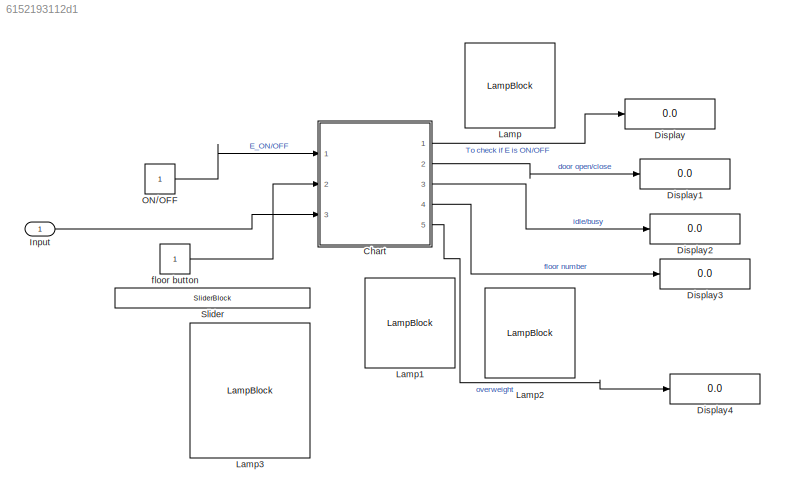
MODEL slx_6152193112d1
KIND model
CONFIG AbsTol = auto
CONFIG EnableMultiTasking = off
CONFIG FixedStep = auto
CONFIG MaxStep = auto
CONFIG MinStep = auto
CONFIG RelTol = 1e-3
CONFIG SampleTimeConstraint = Unconstrained
CONFIG SolverName = VariableStepAuto
CONFIG StartTime = 0.0
CONFIG StopTime = 10.0
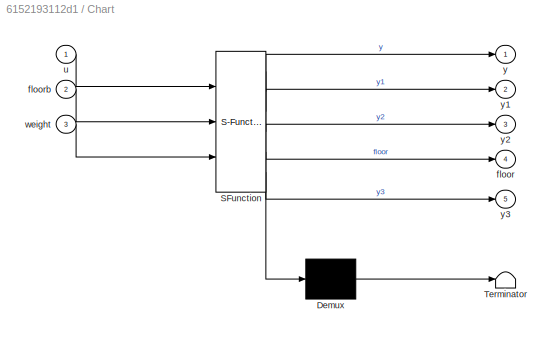
BLOCK [SubSystem] Chart
  ErrorFcn = Stateflow.Translate.translate
  PermitHierarchicalResolution = ExplicitOnly
  Ports = [3, 5]
  RequestExecContextInheritance = off
  SFBlockType = Chart
  TreatAsAtomicUnit = on
BLOCK [Demux] Chart/ Demux 
  Outputs = 1
  Ports = [1, 1]
BLOCK [S-Function] Chart/ SFunction 
  EnableBusSupport = on
  FunctionName = sf_sfun
  PortCounts = [3 6]
  Ports = [3, 6]
  SFcnIsStateOwnerBlock = off
  SFunctionDeploymentMode = off
  Tag = Stateflow S-Function 3
BLOCK [Terminator] Chart/ Terminator 
BLOCK [Outport] Chart/floor
  Port = 4
BLOCK [Inport] Chart/floorb
  Port = 2
BLOCK [Inport] Chart/u
BLOCK [Inport] Chart/weight
  Port = 3
BLOCK [Outport] Chart/y
BLOCK [Outport] Chart/y1
  Port = 2
BLOCK [Outport] Chart/y2
  Port = 3
BLOCK [Outport] Chart/y3
  Port = 5
BLOCK [Display] Display
  Decimation = 1
  Ports = [1]
BLOCK [Display] Display1
  Decimation = 1
  Ports = [1]
BLOCK [Display] Display2
  Decimation = 1
  Ports = [1]
BLOCK [Display] Display3
  Decimation = 1
  Ports = [1]
BLOCK [Display] Display4
  Decimation = 1
  Ports = [1]
BLOCK [Inport] Input
BLOCK [LampBlock] Lamp
BLOCK [LampBlock] Lamp1
BLOCK [LampBlock] Lamp2
BLOCK [LampBlock] Lamp3
BLOCK [Constant] ON//OFF
BLOCK [SliderBlock] Slider
  ScaleMax = 5
  TickInterval = 1
BLOCK [Constant] floor button
  NameLocation = right
LINE Chart:1 -> Display:1
LINE Chart:2 -> Display1:1
LINE Chart:3 -> Display2:1
LINE Chart:4 -> Display3:1
LINE Chart:5 -> Display4:1
LINE Input:1 -> Chart:3
LINE ON//OFF:1 -> Chart:1
LINE floor button:1 -> Chart:2
CHART Chart states=13 transitions=18
  STATE_LABEL 'Elevator_on\nentry: y=1;\n y3=0;\n'
  STATE_LABEL '<!DOCTYPE HTML PUBLIC "-//W3C//DTD HTML 4.0//EN" "http://www.w3.org/TR/REC-html40/strict.dtd">\n<html><head><meta name="qrichtext" content="1" /><style type="text/css">\np, li { white-space: pre-wrap; }\n</style></head><body align="left" style=" font-family:\'MS Shell Dlg 2\'; font-size:8.25pt; font-weight:400; font-style:normal;">\n<p align="left" style=" margin-top:0px; margin-bottom:0px; margin-left:...<+303ch>'
  STATE_LABEL 'DOWN\nentry:\nfloor=floor-1;'
  STATE_LABEL 'Delay1\nentry:\nfloor=floor-1;'
  STATE_LABEL 'Idle_state\nentry: y1=0;'
  STATE_LABEL 'UP\nentry:\nfloor=floor+1;'
  STATE_LABEL 'Delay\nentry:\nfloor=floor+1;'
  STATE_LABEL 'Door_open1\nentry:\ny2=1;'
  STATE_LABEL 'Door_close1\nentry:\ny2=0;'
  STATE_LABEL 'Door_open\nentry:\ny2=1;'
  STATE_LABEL 'Door_close\nentry:\ny2=0;'
  STATE_LABEL '[floorb<floor]'
  STATE_LABEL '[floorb<floor]'
  STATE_LABEL '[floorb>floor]{y1=1}'
  STATE_LABEL '[floorb==floor]'
  STATE_LABEL '[floor==floorb]'
  STATE_LABEL '[floorb>floor]'
  STATE_LABEL '[floorb>floor]'
  STATE_LABEL '[after(5,sec)]'
  STATE_LABEL '[floorb==floor]'
  STATE_LABEL '[floor==floorb]'
  STATE_LABEL '[after(5,sec)]'
  STATE_LABEL '<!DOCTYPE HTML PUBLIC "-//W3C//DTD HTML 4.0//EN" "http://www.w3.org/TR/REC-html40/strict.dtd">\n<html><head><meta name="qrichtext" content="1" /><style type="text/css">\np, li { white-space: pre-wrap; }\n</style></head><body align="left" style=" font-family:\'MS Shell Dlg 2\'; font-size:8.25pt; font-weight:400; font-style:normal;">\n<p align="left" style=" margin-top:0px; margin-bottom:0px; margin-left:...<+303ch>'
  STATE_LABEL 'DOWN\nentry:\nfloor=floor-1;'
  STATE_LABEL 'Delay1\nentry:\nfloor=floor-1;'
  STATE_LABEL 'Idle_state\nentry: y1=0;'
  STATE_LABEL 'UP\nentry:\nfloor=floor+1;'
  STATE_LABEL 'Delay\nentry:\nfloor=floor+1;'
  STATE_LABEL 'Door_open1\nentry:\ny2=1;'
  STATE_LABEL 'Door_close1\nentry:\ny2=0;'
  STATE_LABEL 'Door_open\nentry:\ny2=1;'
  STATE_LABEL 'Door_close\nentry:\ny2=0;'
  STATE_LABEL 'overload\nentry: y3=1;'
  STATE_LABEL 'Elevator_off\nentry: y=0;'
CHART  states=0 transitions=0
